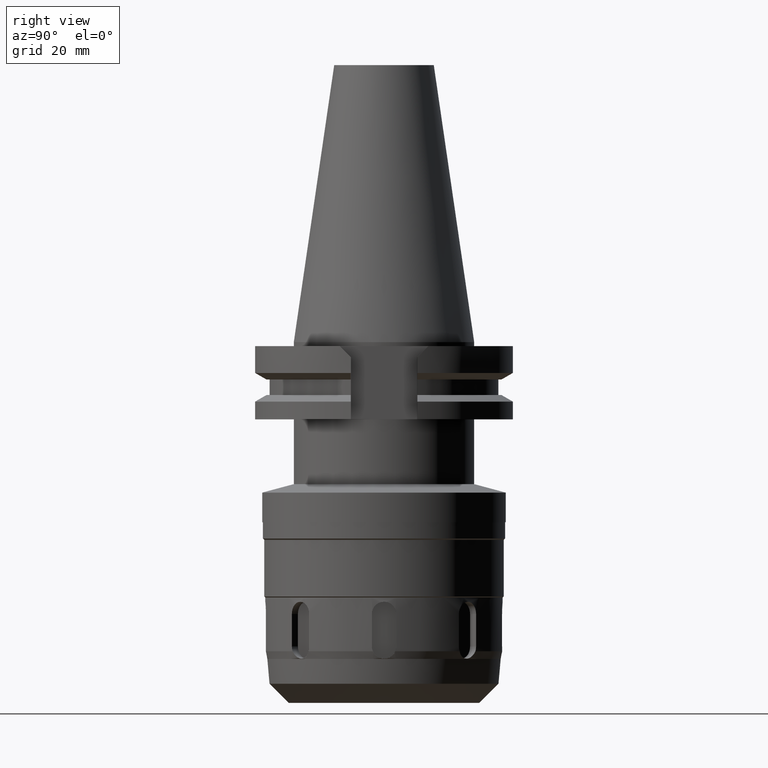
[diagram: clean part render]
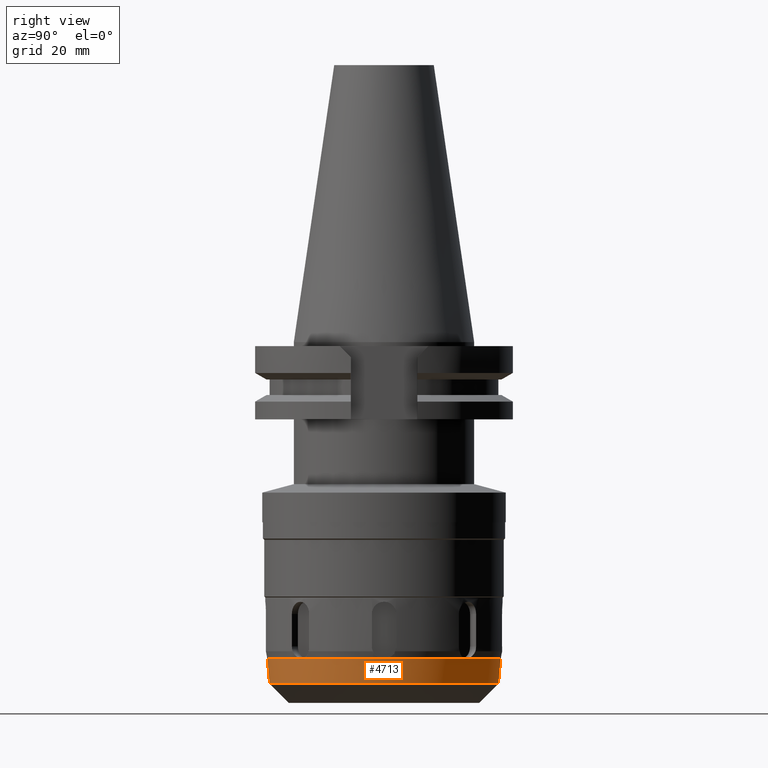
[diagram: same view with one face highlighted and labeled with its STEP entity id]
A machine part, right view. The second image highlights one B-rep face of the part: STEP entity #4713.
In plain terms, the highlighted conical surface has half-angle 5 deg.
Its self-contained STEP definition (entity closure, byte-faithful):
#2344=DIRECTION('',(0.E0,-8.715574274775E-2,-9.961946980917E-1));
#2345=VECTOR('',#2344,6.144244409989E0);
#2346=CARTESIAN_POINT('',(0.E0,2.875050618518E1,-7.806413629499E1));
#2347=LINE('',#2346,#2345);
#2351=CARTESIAN_POINT('',(0.E0,0.E0,-7.806413629499E1));
#2352=DIRECTION('',(0.E0,0.E0,1.E0));
#2353=DIRECTION('',(0.E0,-1.E0,0.E0));
#2354=AXIS2_PLACEMENT_3D('',#2351,#2352,#2353);
#2359=DIRECTION('',(0.E0,8.715574274774E-2,-9.961946980917E-1));
#2360=VECTOR('',#2359,6.144244409989E0);
#2361=CARTESIAN_POINT('',(-1.628871111192E-14,-2.875050618518E1,
-7.806413629499E1));
#2362=LINE('',#2361,#2360);
#2388=CARTESIAN_POINT('',(0.E0,-1.059839956152E-14,-8.4185E1));
#2389=DIRECTION('',(0.E0,0.E0,1.E0));
#2390=DIRECTION('',(0.E0,-1.E0,0.E0));
#2391=AXIS2_PLACEMENT_3D('',#2388,#2389,#2390);
#2754=CARTESIAN_POINT('',(0.E0,2.8215E1,-8.4185E1));
#2755=VERTEX_POINT('',#2754);
#2756=CARTESIAN_POINT('',(0.E0,-2.8215E1,-8.4185E1));
#2757=VERTEX_POINT('',#2756);
#2758=CARTESIAN_POINT('',(0.E0,2.875050618518E1,-7.806413629499E1));
#2759=VERTEX_POINT('',#2758);
#2760=CARTESIAN_POINT('',(-2.905650068648E-14,-2.875050618518E1,
-7.806413629499E1));
#2761=VERTEX_POINT('',#2760);
#4699=CARTESIAN_POINT('',(0.E0,0.E0,-8.112456814749E1));
#4700=DIRECTION('',(0.E0,0.E0,1.E0));
#4701=DIRECTION('',(0.E0,1.E0,0.E0));
#4702=AXIS2_PLACEMENT_3D('',#4699,#4700,#4701);
#4703=CONICAL_SURFACE('',#4702,2.848275309259E1,5.E0);
#4705=ORIENTED_EDGE('',*,*,#4704,.T.);
#4707=ORIENTED_EDGE('',*,*,#4706,.F.);
#4709=ORIENTED_EDGE('',*,*,#4708,.F.);
#4710=ORIENTED_EDGE('',*,*,#4264,.T.);
#4711=EDGE_LOOP('',(#4705,#4707,#4709,#4710));
#4712=FACE_OUTER_BOUND('',#4711,.F.);
#2355=CIRCLE('',#2354,2.875050618518E1);
#2392=CIRCLE('',#2391,2.8215E1);
#4264=EDGE_CURVE('',#2761,#2759,#2355,.T.);
#4704=EDGE_CURVE('',#2759,#2755,#2347,.T.);
#4706=EDGE_CURVE('',#2757,#2755,#2392,.T.);
#4708=EDGE_CURVE('',#2761,#2757,#2362,.T.);
#4713=ADVANCED_FACE('',(#4712),#4703,.T.);